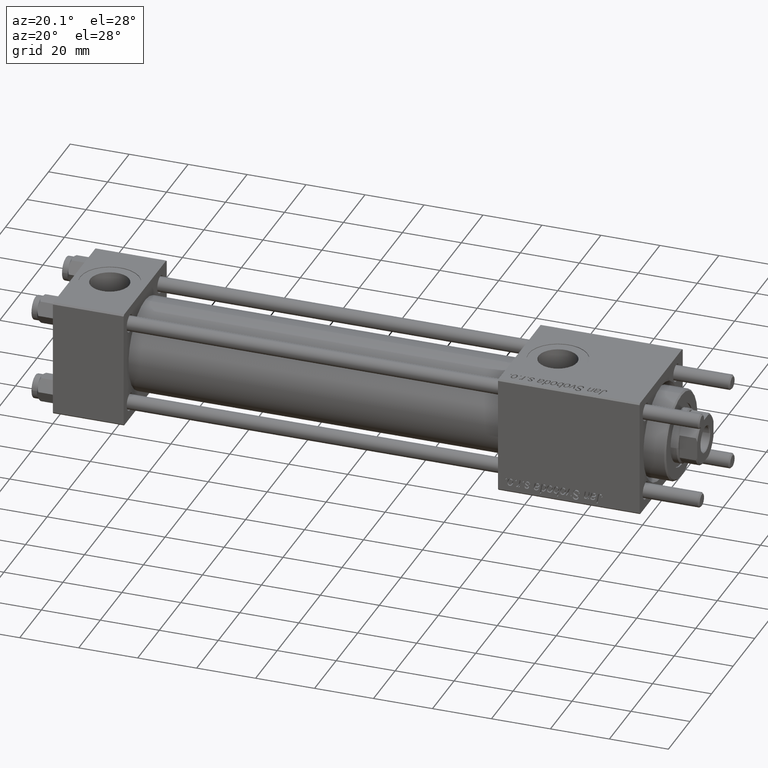
[diagram: clean part render]
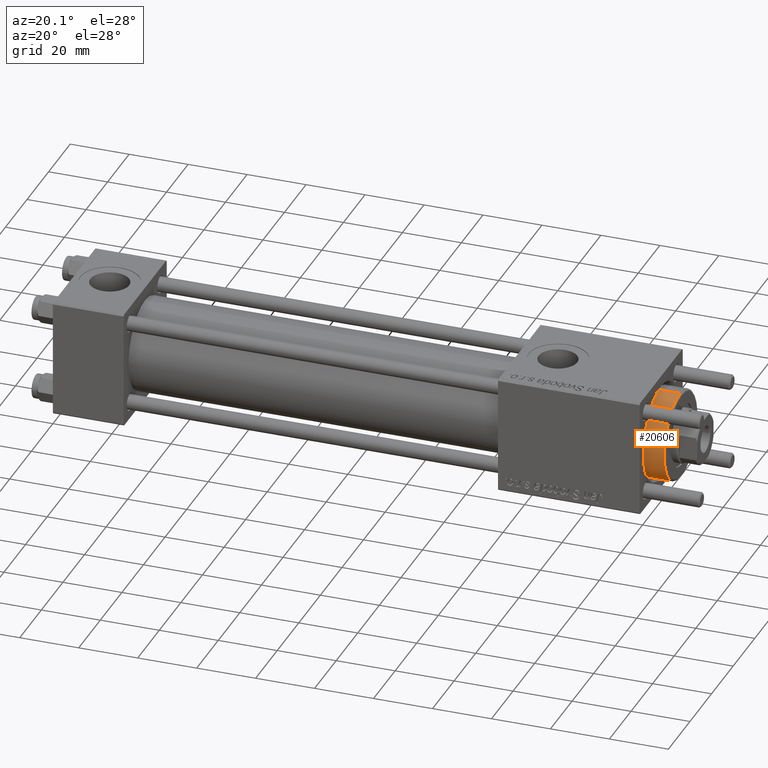
[diagram: same view with one face highlighted and labeled with its STEP entity id]
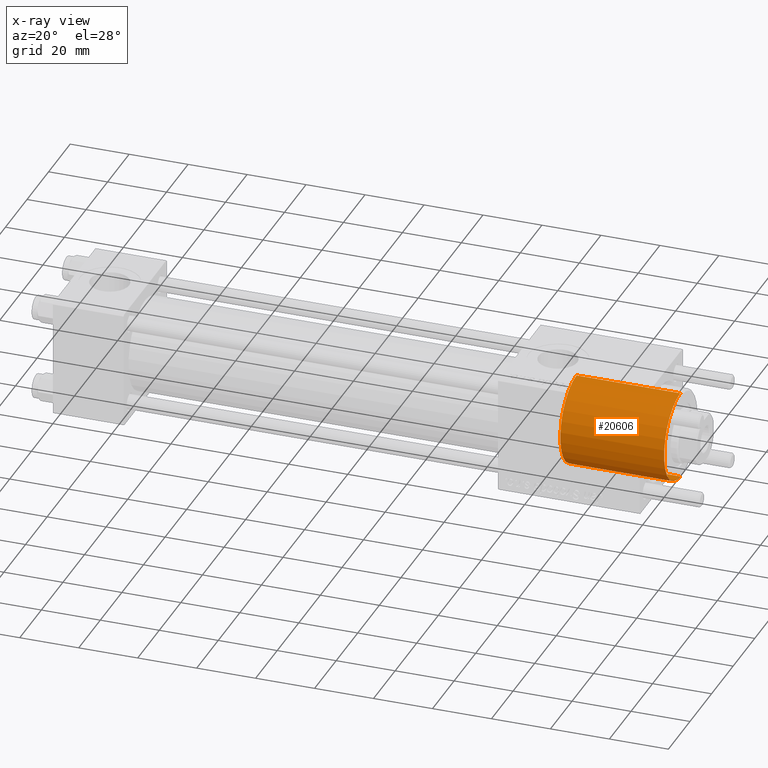
[diagram: x-ray of the same camera — body ghosted, the highlighted face saturated]
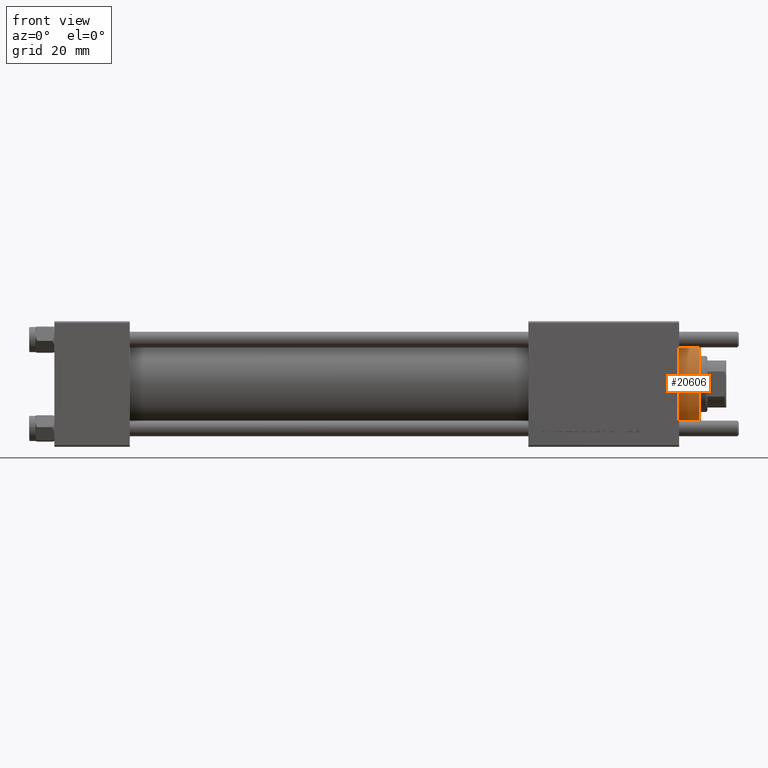
[diagram: same view with one face highlighted and labeled with its STEP entity id]
A machine part, auxiliary view. The second image highlights one B-rep face of the part: STEP entity #20606.
The next image is the same camera in x-ray: the body ghosted, the highlighted face saturated — about 0% of this face is hidden behind the body in this view.
A second angle (front view) of the same face is appended — the face is thin or edge-on in the first view.
In plain terms, the highlighted cylindrical surface (partial cylindrical patch) has radius 15 mm, axis along (-1, -0, 0).
Its self-contained STEP definition (entity closure, byte-faithful):
#2407 = AXIS2_PLACEMENT_3D ( 'NONE', #14977, #9828, #40439 ) ;
#3376 = DIRECTION ( 'NONE',  ( -0.000000000000000000, -0.000000000000000000, -1.000000000000000000 ) ) ;
#4201 = VERTEX_POINT ( 'NONE', #36378 ) ;
#4473 = VECTOR ( 'NONE', #45468, 1000.000000000000000 ) ;
#4501 = EDGE_CURVE ( 'NONE', #54930, #4201, #20180, .T. ) ;
#6244 = CARTESIAN_POINT ( 'NONE',  ( 15.00000000000000000, 1.836970198721029589E-15, 28.69999999999999929 ) ) ;
#6813 = CARTESIAN_POINT ( 'NONE',  ( -15.00000000000000000, 0.000000000000000000, 35.19999999999999574 ) ) ;
#8172 = VERTEX_POINT ( 'NONE', #6813 ) ;
#8538 = CARTESIAN_POINT ( 'NONE',  ( 0.000000000000000000, 0.000000000000000000, 28.69999999999999929 ) ) ;
#8757 = DIRECTION ( 'NONE',  ( 0.000000000000000000, 0.000000000000000000, 1.000000000000000000 ) ) ;
#9828 = DIRECTION ( 'NONE',  ( 0.000000000000000000, 0.000000000000000000, -1.000000000000000000 ) ) ;
#12577 = FACE_OUTER_BOUND ( 'NONE', #36198, .T. ) ;
#14977 = CARTESIAN_POINT ( 'NONE',  ( 0.000000000000000000, 0.000000000000000000, 35.19999999999999574 ) ) ;
#20180 = LINE ( 'NONE', #6244, #52442 ) ;
#20606 = ADVANCED_FACE ( 'NONE', ( #12577 ), #43767, .T. ) ;
#20799 = CIRCLE ( 'NONE', #50060, 15.00000000000000000 ) ;
#21716 = VERTEX_POINT ( 'NONE', #33680 ) ;
#21745 = EDGE_CURVE ( 'NONE', #21716, #4201, #20799, .T. ) ;
#23881 = ORIENTED_EDGE ( 'NONE', *, *, #21745, .T. ) ;
#24063 = EDGE_CURVE ( 'NONE', #8172, #21716, #31714, .T. ) ;
#31714 = LINE ( 'NONE', #36009, #4473 ) ;
#33680 = CARTESIAN_POINT ( 'NONE',  ( -15.00000000000000000, 0.000000000000000000, 0.000000000000000000 ) ) ;
#36009 = CARTESIAN_POINT ( 'NONE',  ( -15.00000000000000000, 0.000000000000000000, 28.69999999999999929 ) ) ;
#36198 = EDGE_LOOP ( 'NONE', ( #45921, #47896, #45077, #23881 ) ) ;
#36378 = CARTESIAN_POINT ( 'NONE',  ( 15.00000000000000000, 1.836970198721029589E-15, 0.000000000000000000 ) ) ;
#39962 = AXIS2_PLACEMENT_3D ( 'NONE', #8538, #3376, #56667 ) ;
#40439 = DIRECTION ( 'NONE',  ( 1.000000000000000000, 0.000000000000000000, 0.000000000000000000 ) ) ;
#43706 = DIRECTION ( 'NONE',  ( 1.000000000000000000, 0.000000000000000000, 0.000000000000000000 ) ) ;
#43767 = CYLINDRICAL_SURFACE ( 'NONE', #39962, 15.00000000000000000 ) ;
#45077 = ORIENTED_EDGE ( 'NONE', *, *, #24063, .T. ) ;
#45468 = DIRECTION ( 'NONE',  ( -0.000000000000000000, -0.000000000000000000, -1.000000000000000000 ) ) ;
#45921 = ORIENTED_EDGE ( 'NONE', *, *, #4501, .F. ) ;
#47896 = ORIENTED_EDGE ( 'NONE', *, *, #53415, .T. ) ;
#47996 = CARTESIAN_POINT ( 'NONE',  ( 0.000000000000000000, 0.000000000000000000, 0.000000000000000000 ) ) ;
#48414 = CARTESIAN_POINT ( 'NONE',  ( 15.00000000000000000, 1.836970198721029589E-15, 35.19999999999999574 ) ) ;
#50060 = AXIS2_PLACEMENT_3D ( 'NONE', #47996, #8757, #43706 ) ;
#51819 = CIRCLE ( 'NONE', #2407, 15.00000000000000000 ) ;
#52442 = VECTOR ( 'NONE', #54076, 1000.000000000000000 ) ;
#53415 = EDGE_CURVE ( 'NONE', #54930, #8172, #51819, .T. ) ;
#54076 = DIRECTION ( 'NONE',  ( -0.000000000000000000, -0.000000000000000000, -1.000000000000000000 ) ) ;
#54930 = VERTEX_POINT ( 'NONE', #48414 ) ;
#56667 = DIRECTION ( 'NONE',  ( -1.000000000000000000, 0.000000000000000000, 0.000000000000000000 ) ) ;